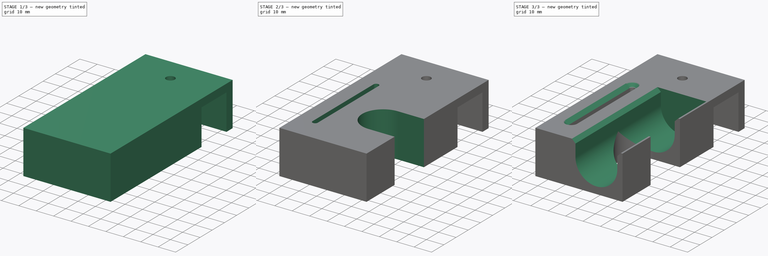
[diagram: build sequence overview — one tinted view per stage of 3, left to right]
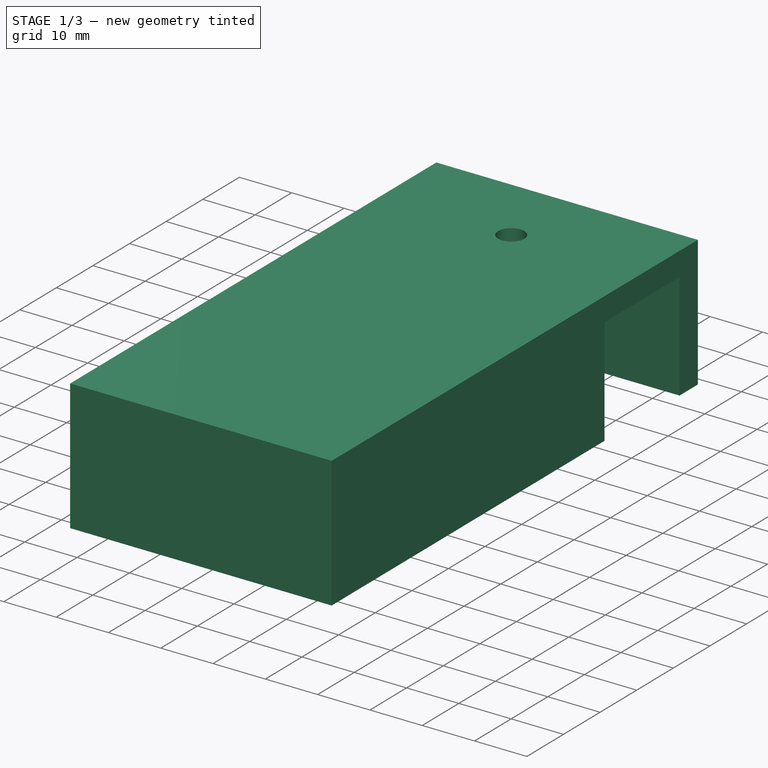
[diagram: stage 1 of 3 — iso view after this stage's code; geometry added in this stage tinted green]
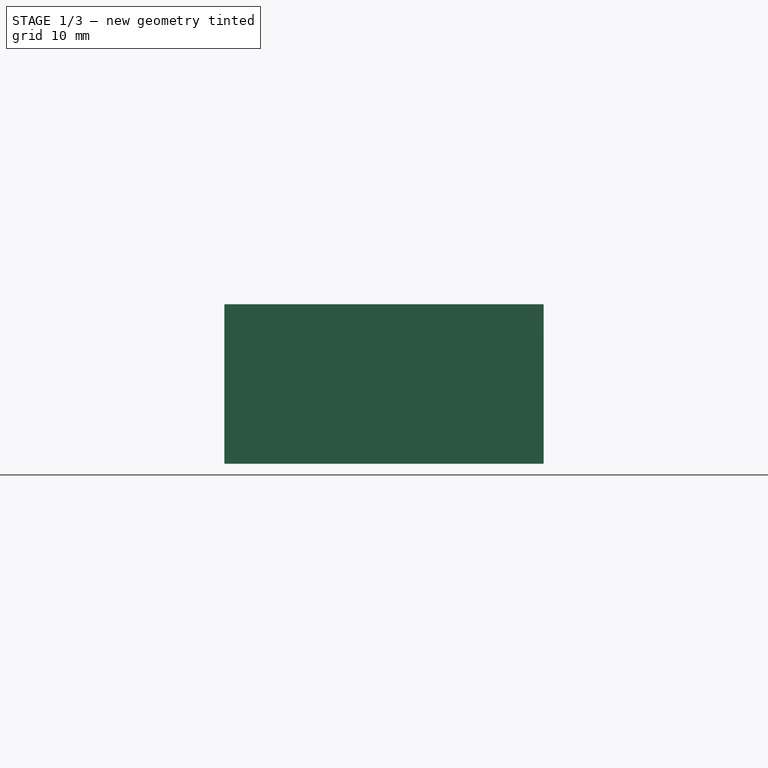
[diagram: stage 1 of 3 — front view after this stage's code; geometry added in this stage tinted green]
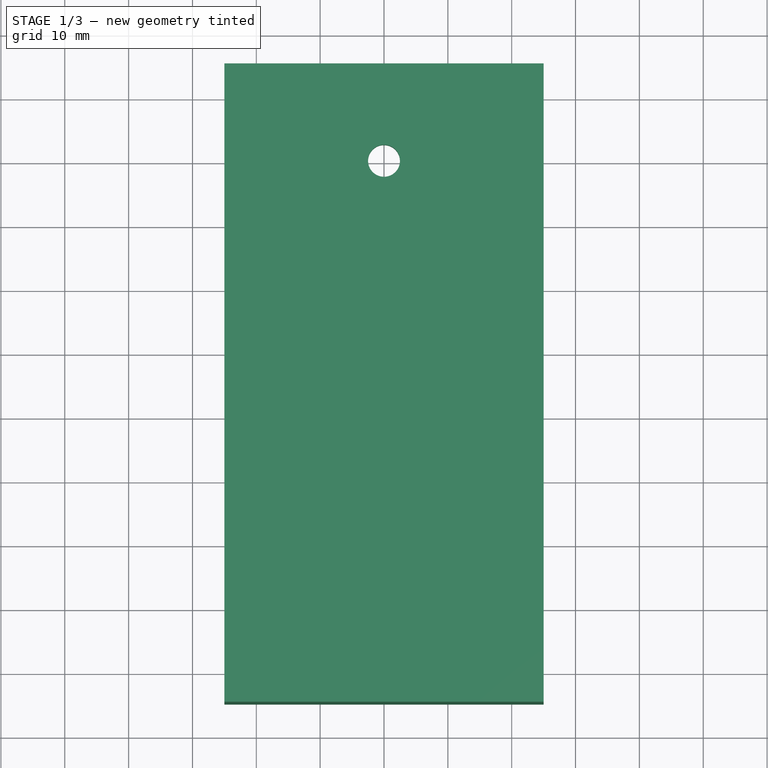
[diagram: stage 1 of 3 — top view after this stage's code; geometry added in this stage tinted green]
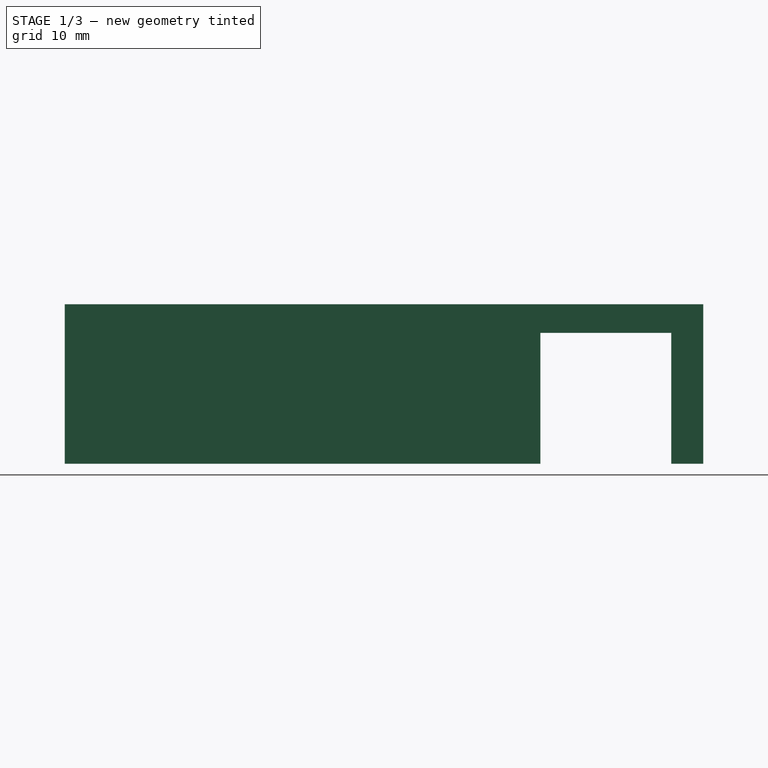
[diagram: stage 1 of 3 — right view after this stage's code; geometry added in this stage tinted green]
FCSTD DOCUMENT  (FreeCAD 0.16R6706 (Git))
Label: harvesting_tool_holder
License: All rights reserved
LicenseURL: http://en.wikipedia.org/wiki/All_rights_reserved
objects: Sketcher::SketchObject×6, PartDesign::Pocket×5, PartDesign::Chamfer×2, PartDesign::Pad×1
note: 20 computed .brp shape members not serialized (recipe doc carries the construction recipe); baked Part::Feature solids carry a one-line shape summary decoded from their .brp

FEATURE [Sketcher::SketchObject] Sketch
  sketch-geometry (8):
    g0: LineSegment StartX=-25 StartY=15.25 StartZ=0 EndX=25 EndY=15.25 EndZ=0
    g1: LineSegment StartX=25 StartY=15.25 StartZ=0 EndX=25 EndY=-84.75 EndZ=0
    g2: LineSegment StartX=25 StartY=-84.75 StartZ=0 EndX=-25 EndY=-84.75 EndZ=0
    g3: LineSegment StartX=-25 StartY=-84.75 StartZ=0 EndX=-25 EndY=15.25 EndZ=0
    g4: LineSegment [constr] StartX=-25 StartY=10.25 StartZ=0 EndX=25 EndY=10.25 EndZ=0
    g5: LineSegment [constr] StartX=25 StartY=10.25 StartZ=0 EndX=25 EndY=-10.25 EndZ=0
    g6: LineSegment [constr] StartX=25 StartY=-10.25 StartZ=0 EndX=-25 EndY=-10.25 EndZ=0
    g7: LineSegment [constr] StartX=-25 StartY=-10.25 StartZ=0 EndX=-25 EndY=10.25 EndZ=0
  constraints (24):
    c: Coincident(g0,g1)
    c: Coincident(g1,g2)
    c: Coincident(g2,g3)
    c: Coincident(g3,g0)
    c: Horizontal(g0)
    c: Horizontal(g2)
    c: Vertical(g1)
    c: Vertical(g3)
    c: Symmetric(g0,g0,g-2)
    c: Coincident(g4,g5)
    c: Coincident(g5,g6)
    c: Coincident(g6,g7)
    c: Coincident(g7,g4)
    c: Horizontal(g4)
    c: Horizontal(g6)
    c: Vertical(g5)
    c: Vertical(g7)
    c: PointOnObject(g4,g3)
    c: PointOnObject(g5,g1)
    c: Symmetric(g4,g5,g-1)
    c: DistanceY(g4,g0) = 5
    c: DistanceY(g5,g4) = 20.5
    c: DistanceX(g0,g0) = 50
    c: DistanceY(g1,g0) = 100
FEATURE [PartDesign::Pad] Pad  label="main_block"
  Length = 25
  Length2 = 100
  Sketch = -> Sketch
  Type = 0
FEATURE [Sketcher::SketchObject] Sketch001
  Placement = pos=(25,0,0) rot=(0.57735,0.57735,0.57735;2.0944rad)
  Support = -> Pad [Face2]
  sketch-geometry (4):
    g0: LineSegment StartX=10.25 StartY=0 StartZ=0 EndX=-10.25 EndY=0 EndZ=0
    g1: LineSegment StartX=-10.25 StartY=0 StartZ=0 EndX=-10.25 EndY=20.5 EndZ=0
    g2: LineSegment StartX=-10.25 StartY=20.5 StartZ=0 EndX=10.25 EndY=20.5 EndZ=0
    g3: LineSegment StartX=10.25 StartY=20.5 StartZ=0 EndX=10.25 EndY=0 EndZ=0
  constraints (12):
    c: Coincident(g0,g1)
    c: Coincident(g1,g2)
    c: Coincident(g2,g3)
    c: Coincident(g3,g0)
    c: Horizontal(g0)
    c: Horizontal(g2)
    c: Vertical(g1)
    c: Vertical(g3)
    c: PointOnObject(g0,g-1)
    c: DistanceY(g3,g3) = 20.5
    c: DistanceX(g2,g2) = 20.5
    c: Symmetric(g2,g1,g-2)
FEATURE [PartDesign::Pocket] Pocket  label="profile_channel"
  Length = 100
  Sketch = -> Sketch001
  Type = 0
FEATURE [Sketcher::SketchObject] Sketch002
  Placement = pos=(0,0,25) rot=(0,0,1;0rad)
  Support = -> Pocket [Face5]
  sketch-geometry (1):
    g0: Circle CenterX=0 CenterY=0 CenterZ=0 NormalX=0 NormalY=0 NormalZ=1 Radius=2.5
  constraints (2):
    c: Coincident(g0,g-1)
    c: Radius(g0) = 2.5
FEATURE [PartDesign::Pocket] Pocket001  label="profile_bolt_hole"
  Length = 100
  Sketch = -> Sketch002
  Type = 0
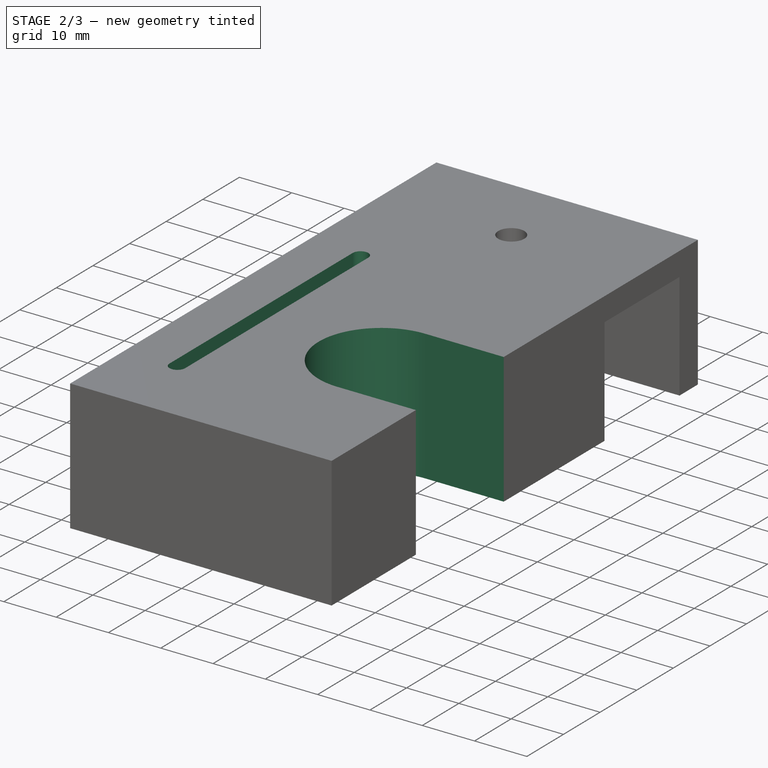
[diagram: stage 2 of 3 — iso view after this stage's code; geometry added in this stage tinted green]
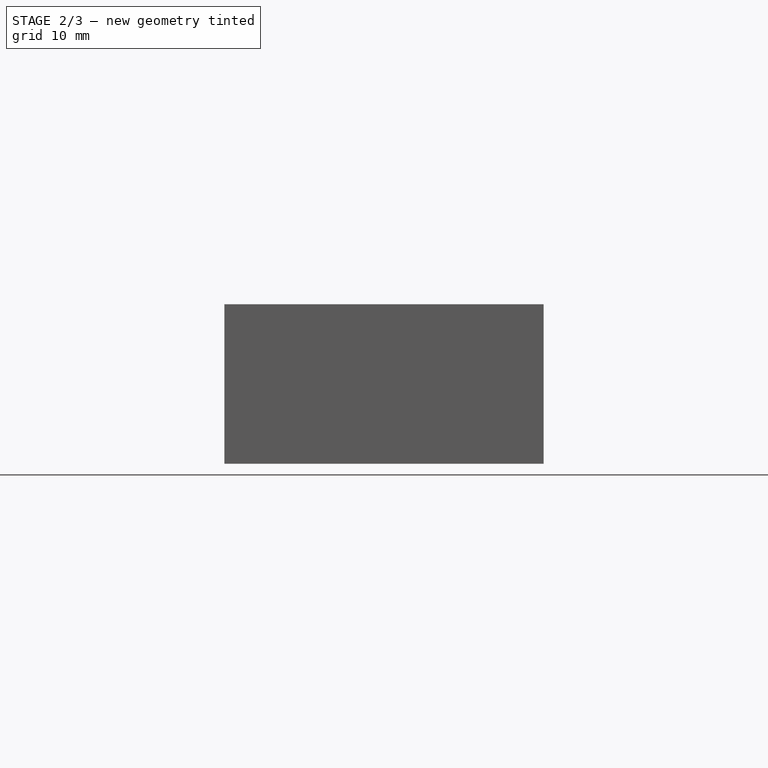
[diagram: stage 2 of 3 — front view after this stage's code; geometry added in this stage tinted green]
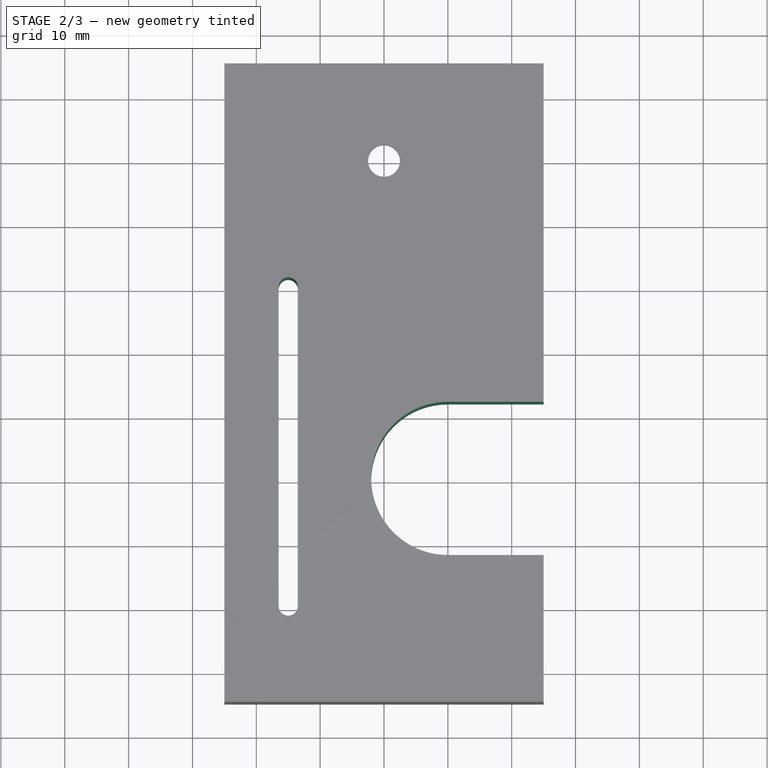
[diagram: stage 2 of 3 — top view after this stage's code; geometry added in this stage tinted green]
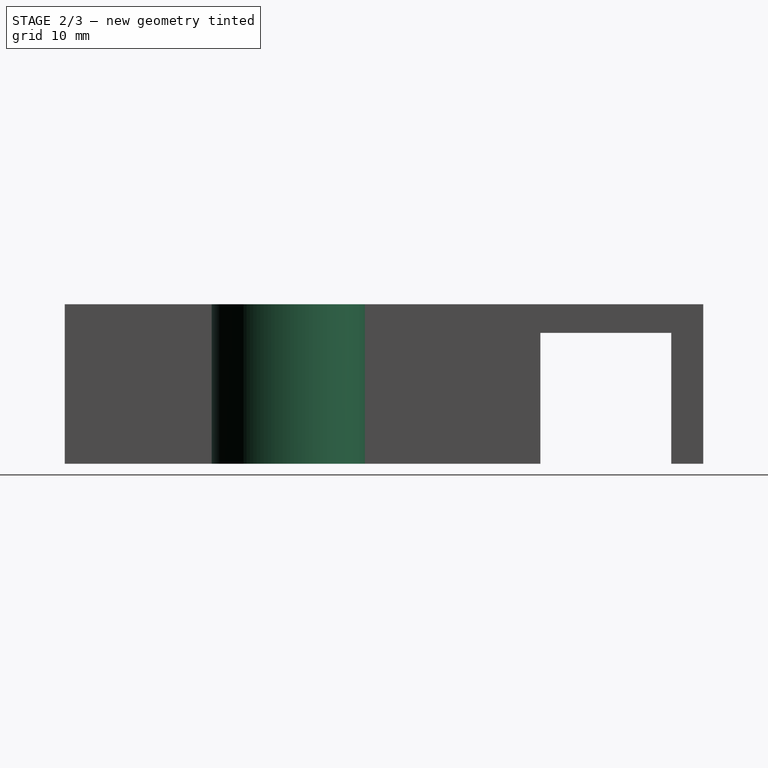
[diagram: stage 2 of 3 — right view after this stage's code; geometry added in this stage tinted green]
FEATURE [Sketcher::SketchObject] Sketch003
  ExternalGeometry = -> [Pocket001]
  Placement = pos=(0,0,25) rot=(0,0,1;0rad)
  Support = -> Pocket001 [Face5]
  sketch-geometry (4):
    g0: ArcOfCircle CenterX=-15 CenterY=-19.75 CenterZ=0 NormalX=0 NormalY=0 NormalZ=1 Radius=1.5 StartAngle=0 EndAngle=3.14159
    g1: ArcOfCircle CenterX=-15 CenterY=-69.75 CenterZ=0 NormalX=0 NormalY=0 NormalZ=1 Radius=1.5 StartAngle=3.14159 EndAngle=6.28319
    g2: LineSegment StartX=-16.5 StartY=-19.75 StartZ=0 EndX=-16.5 EndY=-69.75 EndZ=0
    g3: LineSegment StartX=-13.5 StartY=-19.75 StartZ=0 EndX=-13.5 EndY=-69.75 EndZ=0
  constraints (10):
    c: Tangent(g0,g3) = 1.5708
    c: Tangent(g0,g2) = -1.5708
    c: Tangent(g2,g1) = -1.5708
    c: Tangent(g3,g1) = 1.5708
    c: Vertical(g2)
    c: Equal(g0,g1)
    c: DistanceX(g1,g1) = 3
    c: DistanceY(g2,g2) = 50
    c: DistanceX(g-4,g1) = 10
    c: DistanceY(g-4,g1) = 15
FEATURE [PartDesign::Pocket] Pocket002  label="scraper_hole_pocket"
  Length = 100
  Sketch = -> Sketch003
  Type = 0
FEATURE [Sketcher::SketchObject] Sketch004
  ExternalGeometry = -> [Pocket002]
  Placement = pos=(0,0,25) rot=(0,0,1;0rad)
  Support = -> Pocket002 [Face5]
  sketch-geometry (8):
    g0: ArcOfCircle CenterX=35.3482 CenterY=-49.75 CenterZ=0 NormalX=0 NormalY=0 NormalZ=1 Radius=12 StartAngle=4.71239 EndAngle=7.85398
    g1: ArcOfCircle CenterX=10 CenterY=-49.75 CenterZ=0 NormalX=0 NormalY=0 NormalZ=1 Radius=12 StartAngle=1.5708 EndAngle=4.71239
    g2: LineSegment StartX=35.3482 StartY=-37.75 StartZ=0 EndX=10 EndY=-37.75 EndZ=0
    g3: LineSegment StartX=35.3482 StartY=-61.75 StartZ=0 EndX=10 EndY=-61.75 EndZ=0
    g4: LineSegment [constr] StartX=25 StartY=-84.75 StartZ=0 EndX=-5 EndY=-84.75 EndZ=0
    g5: LineSegment [constr] StartX=-5 StartY=-84.75 StartZ=0 EndX=-5 EndY=-14.75 EndZ=0
    g6: LineSegment [constr] StartX=-5 StartY=-14.75 StartZ=0 EndX=25 EndY=-14.75 EndZ=0
    g7: LineSegment [constr] StartX=25 StartY=-14.75 StartZ=0 EndX=25 EndY=-84.75 EndZ=0
  constraints (19):
    c: Tangent(g0,g3) = 1.5708
    c: Tangent(g0,g2) = -1.5708
    c: Tangent(g2,g1) = -1.5708
    c: Tangent(g3,g1) = 1.5708
    c: Horizontal(g2)
    c: Equal(g0,g1)
    c: DistanceY(g0,g0) = 24
    c: Coincident(g4,g5)
    c: Coincident(g5,g6)
    c: Coincident(g6,g7)
    c: Coincident(g7,g4)
    c: Horizontal(g4)
    c: Horizontal(g6)
    c: Vertical(g5)
    c: Vertical(g7)
    c: Coincident(g4,g-3)
    c: DistanceX(g6,g6) = 30
    c: DistanceY(g5,g5) = 70
    c: Symmetric(g5,g4,g1)
FEATURE [PartDesign::Pocket] Pocket003  label="hammer_handle_pocket"
  Length = 100
  Sketch = -> Sketch004
  Type = 0
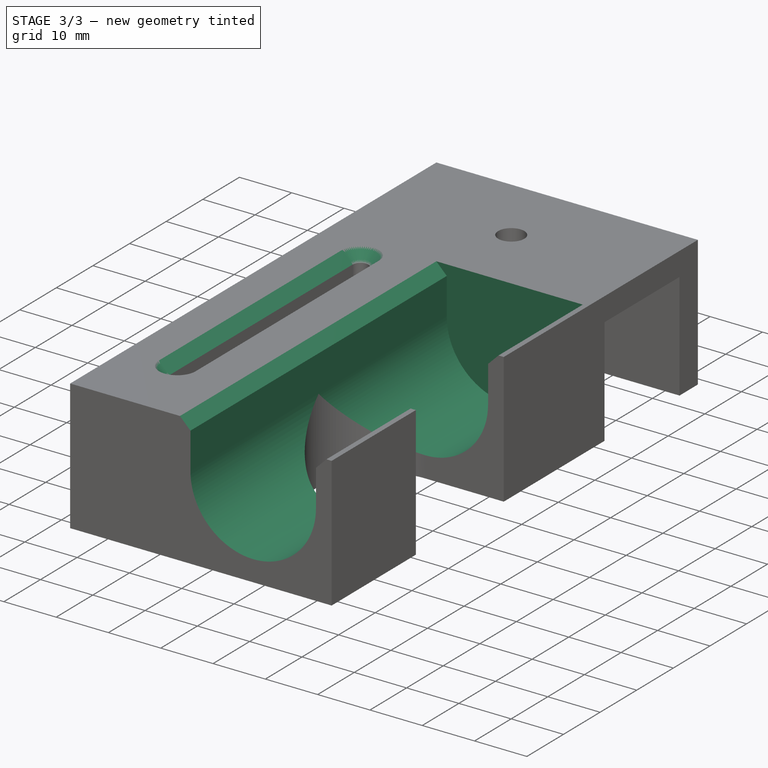
[diagram: stage 3 of 3 — iso view after this stage's code; geometry added in this stage tinted green]
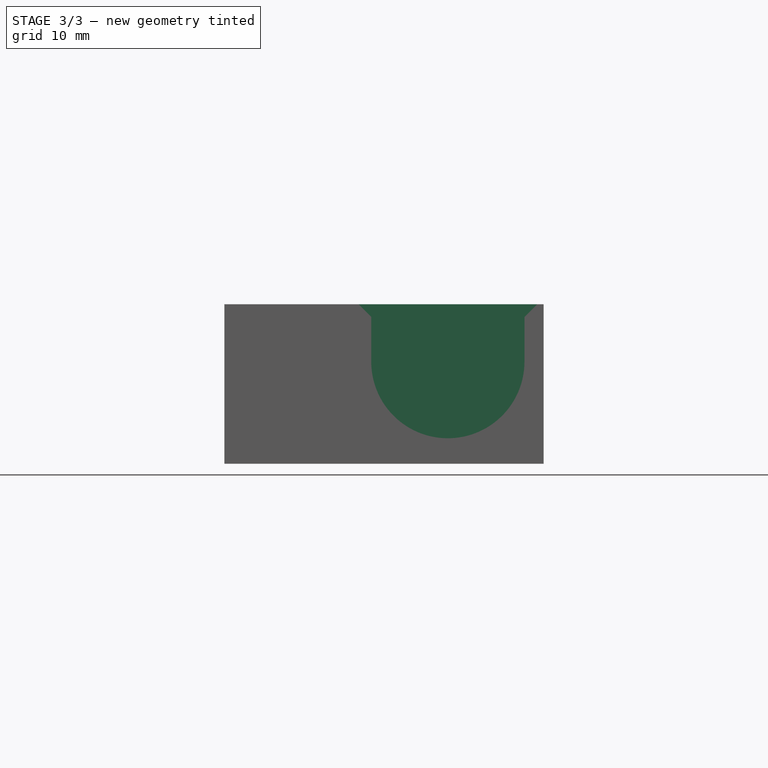
[diagram: stage 3 of 3 — front view after this stage's code; geometry added in this stage tinted green]
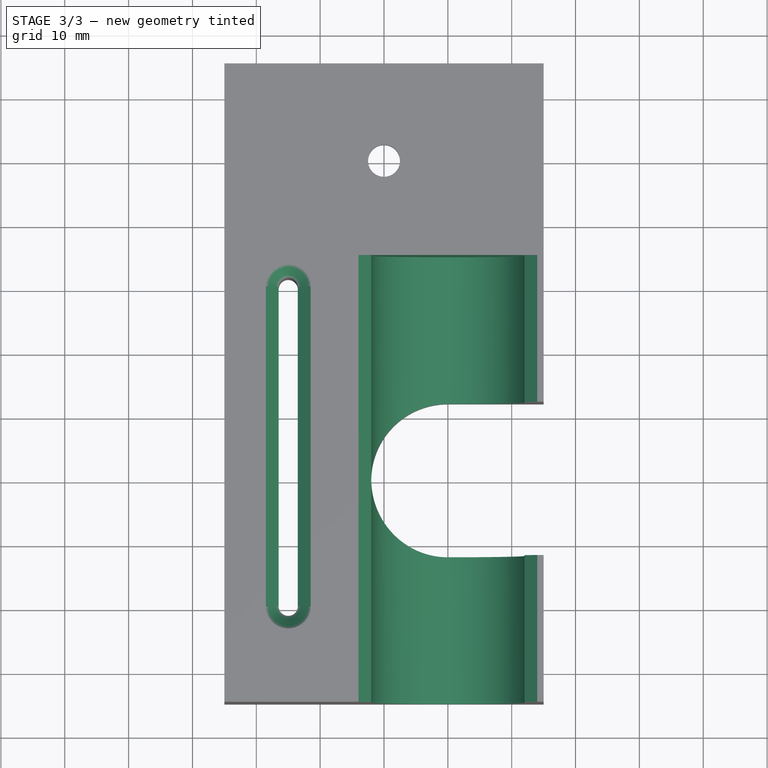
[diagram: stage 3 of 3 — top view after this stage's code; geometry added in this stage tinted green]
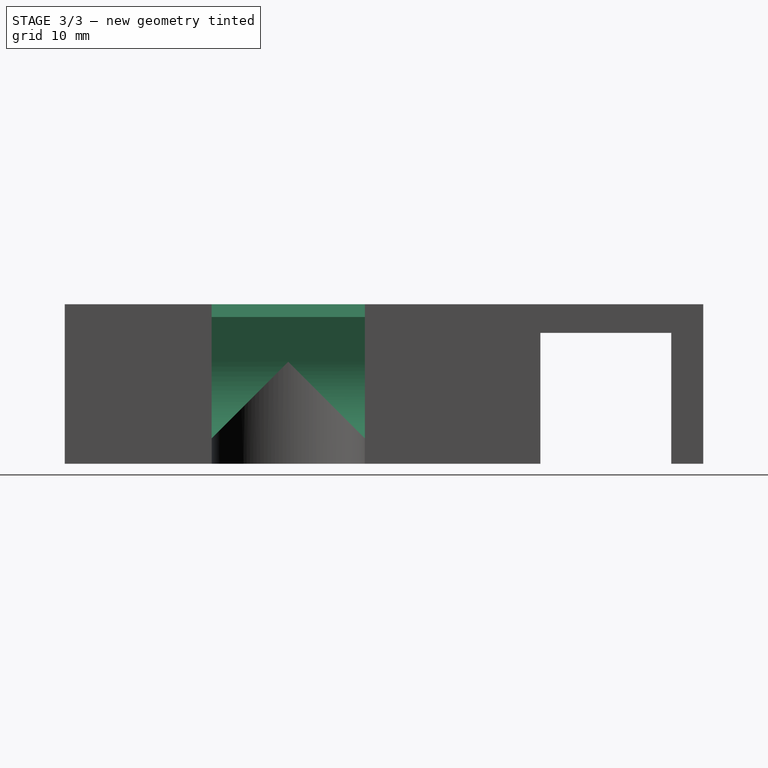
[diagram: stage 3 of 3 — right view after this stage's code; geometry added in this stage tinted green]
FEATURE [Sketcher::SketchObject] Sketch005
  ExternalGeometry = -> [Pocket003]
  Placement = pos=(0,-84.75,0) rot=(1,0,0;1.5708rad)
  Support = -> Pocket003 [Face10]
  sketch-geometry (4):
    g0: ArcOfCircle CenterX=10 CenterY=16 CenterZ=0 NormalX=0 NormalY=0 NormalZ=1 Radius=12 StartAngle=3.14159 EndAngle=6.28319
    g1: ArcOfCircle CenterX=10 CenterY=27.2248 CenterZ=0 NormalX=0 NormalY=0 NormalZ=1 Radius=12 StartAngle=0 EndAngle=3.14159
    g2: LineSegment StartX=22 StartY=16 StartZ=0 EndX=22 EndY=27.2248 EndZ=0
    g3: LineSegment StartX=-2 StartY=16 StartZ=0 EndX=-2 EndY=27.2248 EndZ=0
  constraints (9):
    c: Tangent(g0,g3) = 1.5708
    c: Tangent(g0,g2) = -1.5708
    c: Tangent(g2,g1) = -1.5708
    c: Tangent(g3,g1) = 1.5708
    c: Vertical(g2)
    c: Equal(g0,g1)
    c: DistanceY(g-1,g0) = 16
    c: DistanceX(g0,g-3) = 15
    c: DistanceX(g0,g0) = 24
FEATURE [PartDesign::Pocket] Pocket004  label="hammer_head_pocket"
  Length = 70
  Sketch = -> Sketch005
  Type = 0
FEATURE [PartDesign::Chamfer] Chamfer  label="scraper_chamfer"
  Base = -> Pocket004 [Edge29,Edge28,Edge27,Edge26]
  Size = 2
FEATURE [PartDesign::Chamfer] Chamfer001  label="hammer_chamfer"
  Base = -> Chamfer [Edge10,Edge11,Edge8,Edge77]
  Size = 2
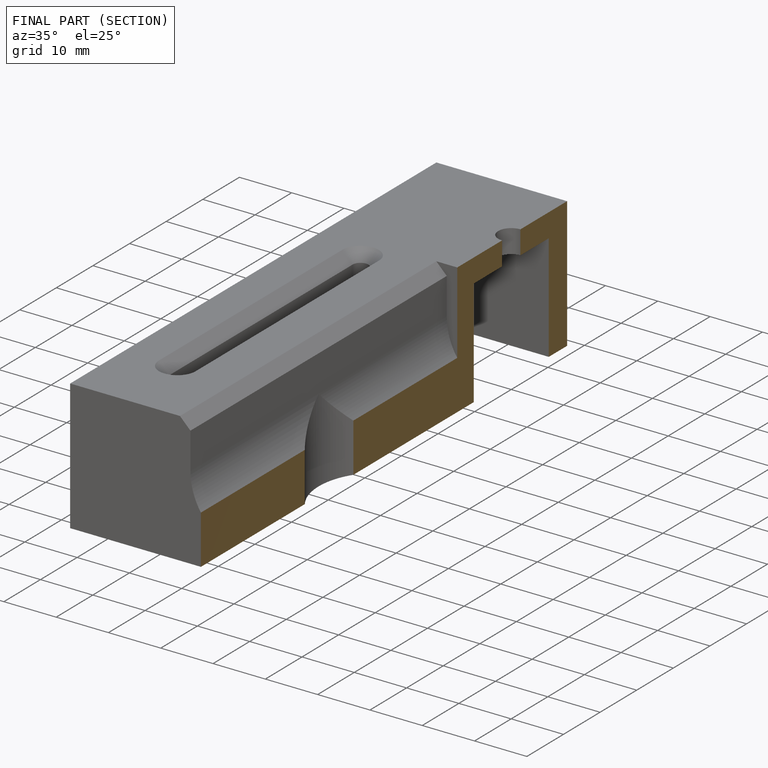
[diagram: finished part — half-section view (interior)]
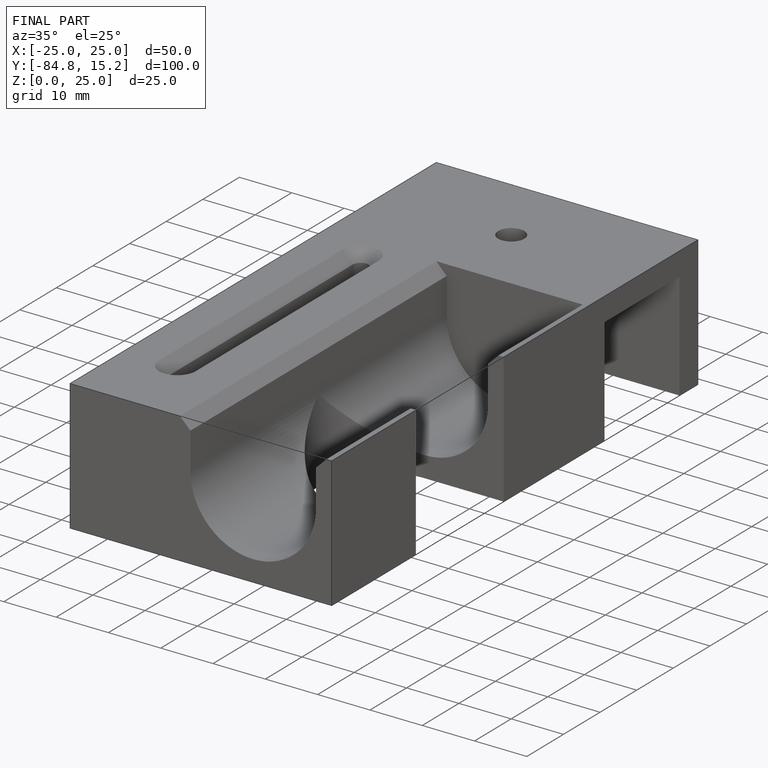
[diagram: finished part — iso view with bounding-box wireframe]
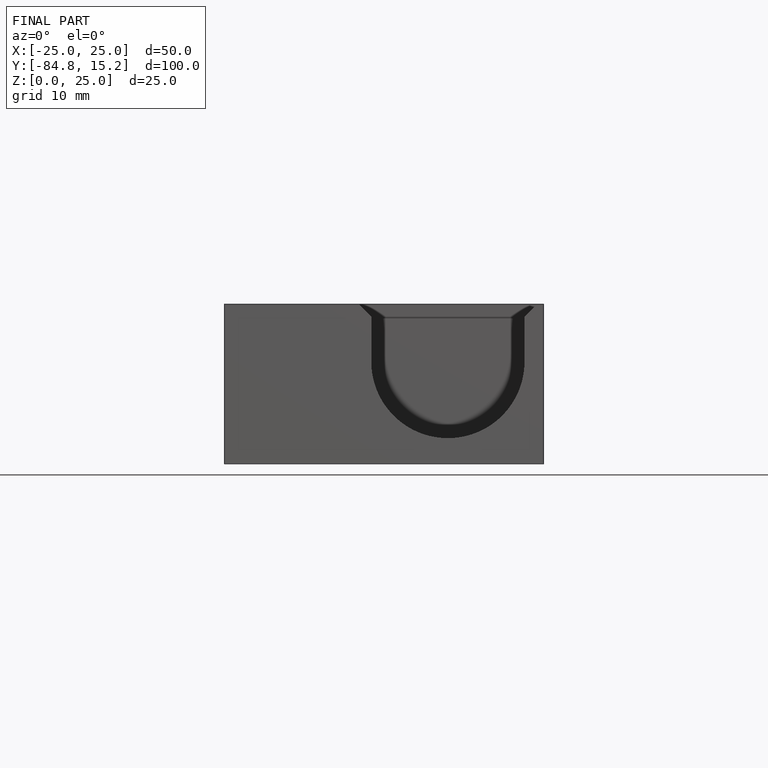
[diagram: finished part — front view with bounding-box wireframe]
